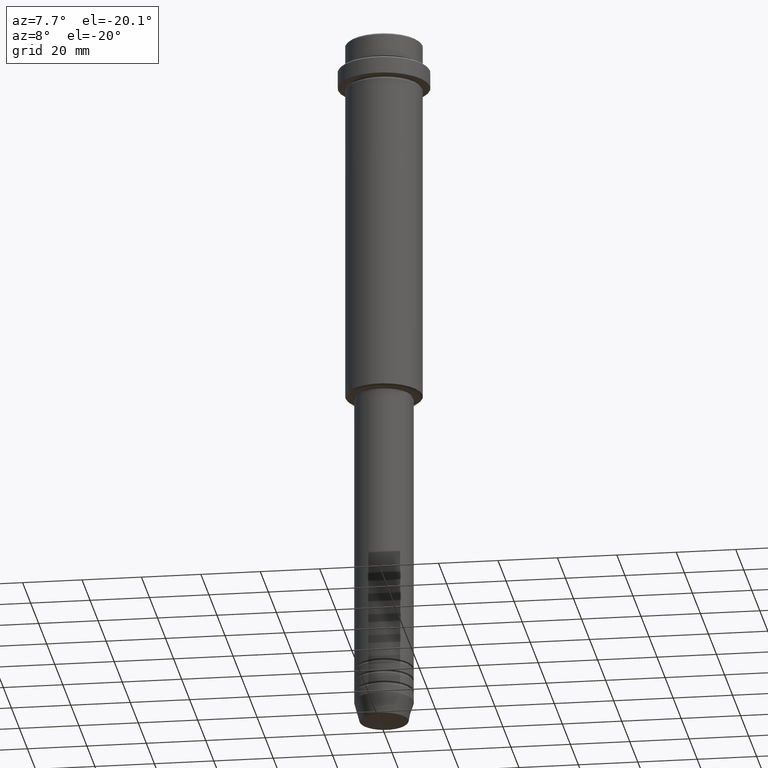
[diagram: clean part render]
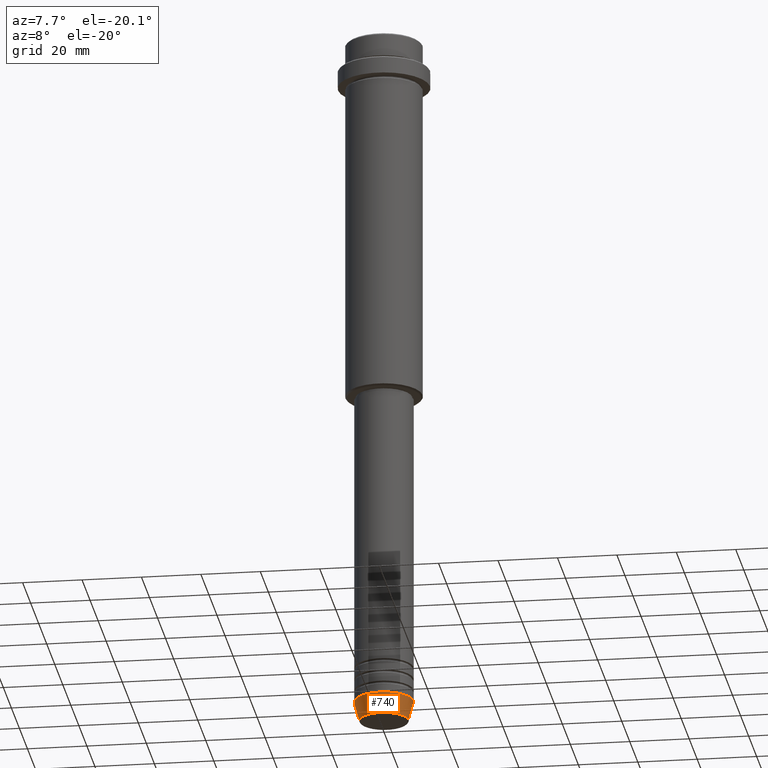
[diagram: same view with one face highlighted and labeled with its STEP entity id]
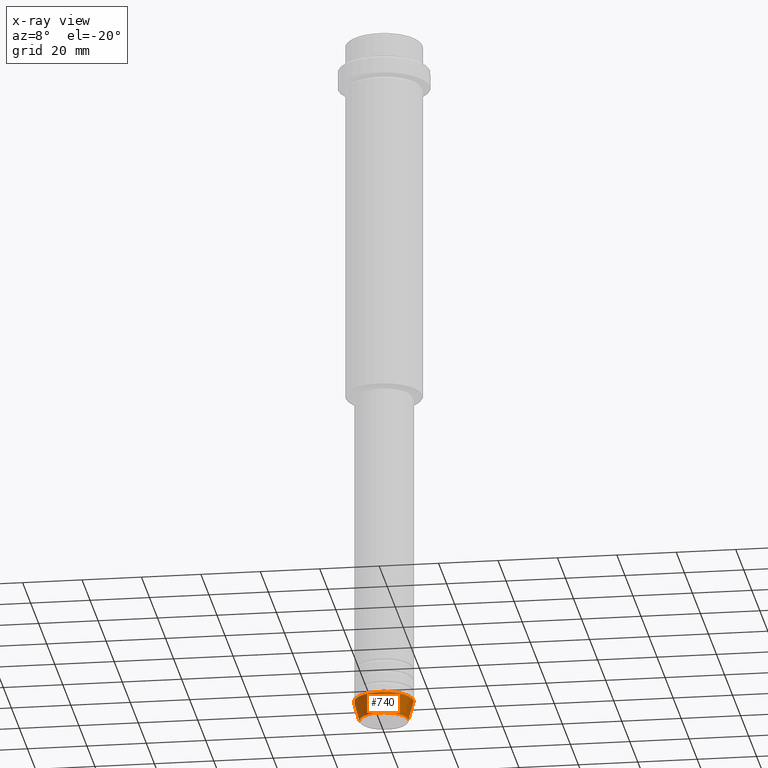
[diagram: x-ray of the same camera — body ghosted, the highlighted face saturated]
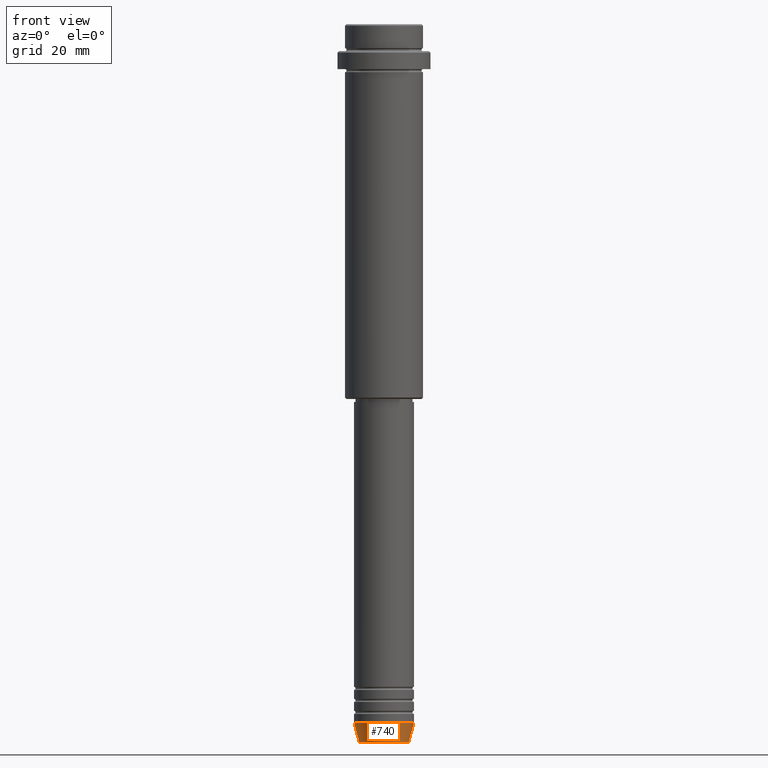
[diagram: same view with one face highlighted and labeled with its STEP entity id]
A machine part, auxiliary view. The second image highlights one B-rep face of the part: STEP entity #740.
The next image is the same camera in x-ray: the body ghosted, the highlighted face saturated — about 0% of this face is hidden behind the body in this view.
A second angle (front view) of the same face is appended — the face is thin or edge-on in the first view.
In plain terms, the highlighted conical surface has half-angle 15 deg.
Its self-contained STEP definition (entity closure, byte-faithful):
#34 = FACE_OUTER_BOUND ( 'NONE', #611, .T. ) ;
#64 = DIRECTION ( 'NONE',  ( 1.000000000000000000, 0.000000000000000000, 0.000000000000000000 ) ) ;
#65 = ORIENTED_EDGE ( 'NONE', *, *, #477, .F. ) ;
#124 = CARTESIAN_POINT ( 'NONE',  ( 8.223655072137198374, 0.000000000000000000, -239.6294095225512422 ) ) ;
#132 = LINE ( 'NONE', #712, #774 ) ;
#146 = DIRECTION ( 'NONE',  ( 1.000000000000000000, 0.000000000000000000, 0.000000000000000000 ) ) ;
#152 = CARTESIAN_POINT ( 'NONE',  ( 10.00000000000000000, 0.000000000000000000, -232.9999999999999716 ) ) ;
#196 = VERTEX_POINT ( 'NONE', #1338 ) ;
#213 = AXIS2_PLACEMENT_3D ( 'NONE', #375, #939, #146 ) ;
#270 = EDGE_CURVE ( 'NONE', #530, #585, #444, .T. ) ;
#301 = LINE ( 'NONE', #310, #562 ) ;
#310 = CARTESIAN_POINT ( 'NONE',  ( -10.00000000000000000, 1.224646799147353256E-15, -232.9999999999999716 ) ) ;
#320 = CARTESIAN_POINT ( 'NONE',  ( 0.000000000000000000, 0.000000000000000000, -232.9999999999999716 ) ) ;
#375 = CARTESIAN_POINT ( 'NONE',  ( 0.000000000000000000, 0.000000000000000000, -232.9999999999999716 ) ) ;
#444 = CIRCLE ( 'NONE', #1241, 8.223655072137198374 ) ;
#477 = EDGE_CURVE ( 'NONE', #196, #821, #1356, .T. ) ;
#530 = VERTEX_POINT ( 'NONE', #644 ) ;
#562 = VECTOR ( 'NONE', #736, 1000.000000000000000 ) ;
#585 = VERTEX_POINT ( 'NONE', #124 ) ;
#611 = EDGE_LOOP ( 'NONE', ( #704, #1278, #1326, #65 ) ) ;
#644 = CARTESIAN_POINT ( 'NONE',  ( -8.223655072137198374, 1.115877042642912645E-15, -239.6294095225512422 ) ) ;
#657 = DIRECTION ( 'NONE',  ( 1.000000000000000000, 0.000000000000000000, 0.000000000000000000 ) ) ;
#704 = ORIENTED_EDGE ( 'NONE', *, *, #1395, .F. ) ;
#712 = CARTESIAN_POINT ( 'NONE',  ( 10.00000000000000000, 0.000000000000000000, -232.9999999999999716 ) ) ;
#727 = DIRECTION ( 'NONE',  ( -0.000000000000000000, -0.000000000000000000, 1.000000000000000000 ) ) ;
#736 = DIRECTION ( 'NONE',  ( -0.2588190451025213501, 3.169619151431772337E-17, 0.9659258262890680902 ) ) ;
#740 = ADVANCED_FACE ( 'NONE', ( #34 ), #958, .T. ) ;
#774 = VECTOR ( 'NONE', #1051, 1000.000000000000000 ) ;
#821 = VERTEX_POINT ( 'NONE', #152 ) ;
#826 = CARTESIAN_POINT ( 'NONE',  ( 0.000000000000000000, 0.000000000000000000, -239.6294095225512422 ) ) ;
#939 = DIRECTION ( 'NONE',  ( -0.000000000000000000, -0.000000000000000000, 1.000000000000000000 ) ) ;
#958 = CONICAL_SURFACE ( 'NONE', #213, 10.00000000000000000, 0.2617993877991500740 ) ;
#971 = DIRECTION ( 'NONE',  ( -0.000000000000000000, -0.000000000000000000, 1.000000000000000000 ) ) ;
#1051 = DIRECTION ( 'NONE',  ( 0.2588190451025213501, 0.000000000000000000, 0.9659258262890680902 ) ) ;
#1112 = AXIS2_PLACEMENT_3D ( 'NONE', #320, #971, #657 ) ;
#1241 = AXIS2_PLACEMENT_3D ( 'NONE', #826, #727, #64 ) ;
#1276 = EDGE_CURVE ( 'NONE', #585, #821, #132, .T. ) ;
#1278 = ORIENTED_EDGE ( 'NONE', *, *, #270, .T. ) ;
#1326 = ORIENTED_EDGE ( 'NONE', *, *, #1276, .T. ) ;
#1338 = CARTESIAN_POINT ( 'NONE',  ( -10.00000000000000000, 1.224646799147353256E-15, -232.9999999999999716 ) ) ;
#1356 = CIRCLE ( 'NONE', #1112, 10.00000000000000000 ) ;
#1395 = EDGE_CURVE ( 'NONE', #530, #196, #301, .T. ) ;